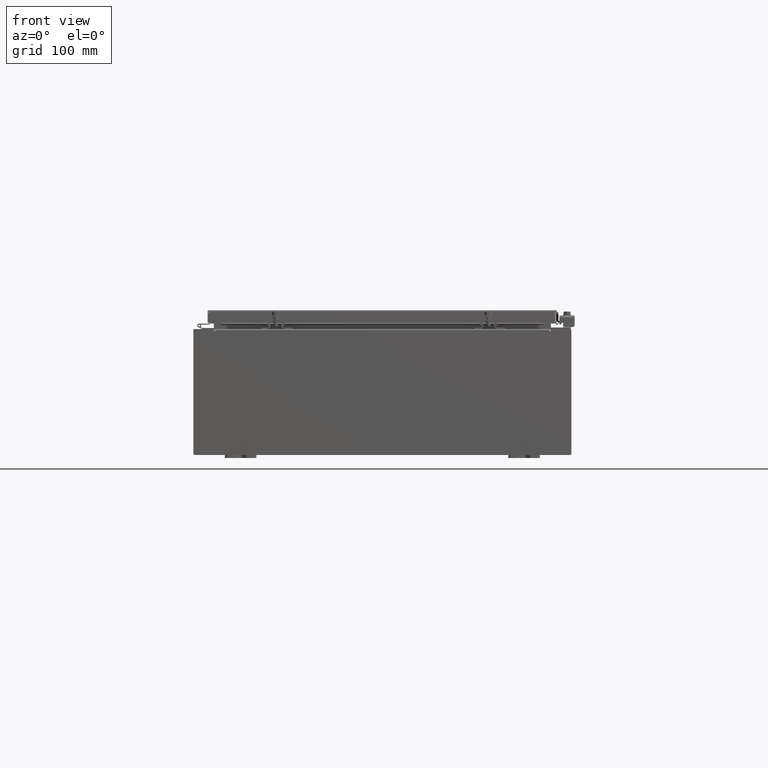
[diagram: clean part render]
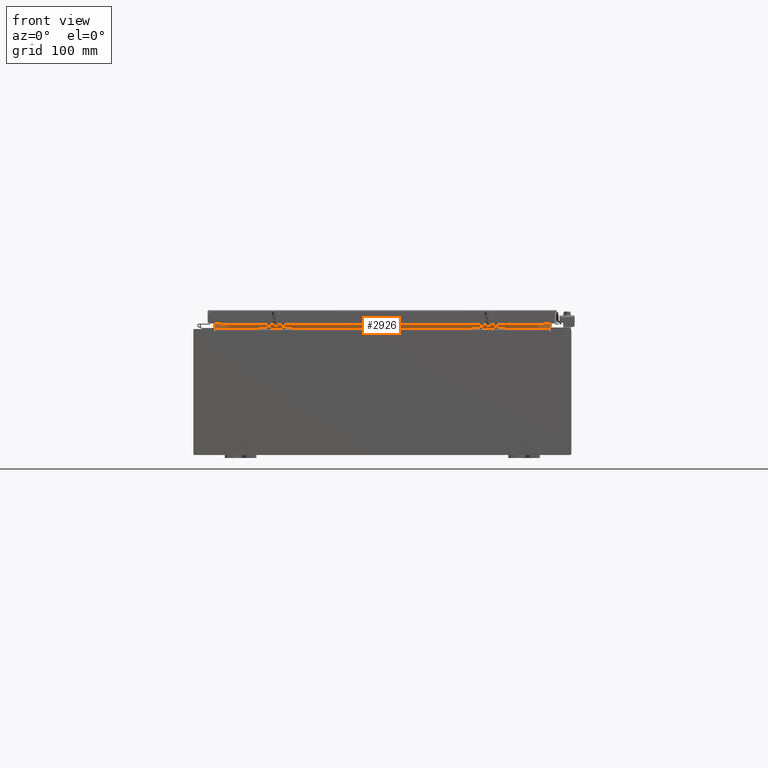
[diagram: same view with one face highlighted and labeled with its STEP entity id]
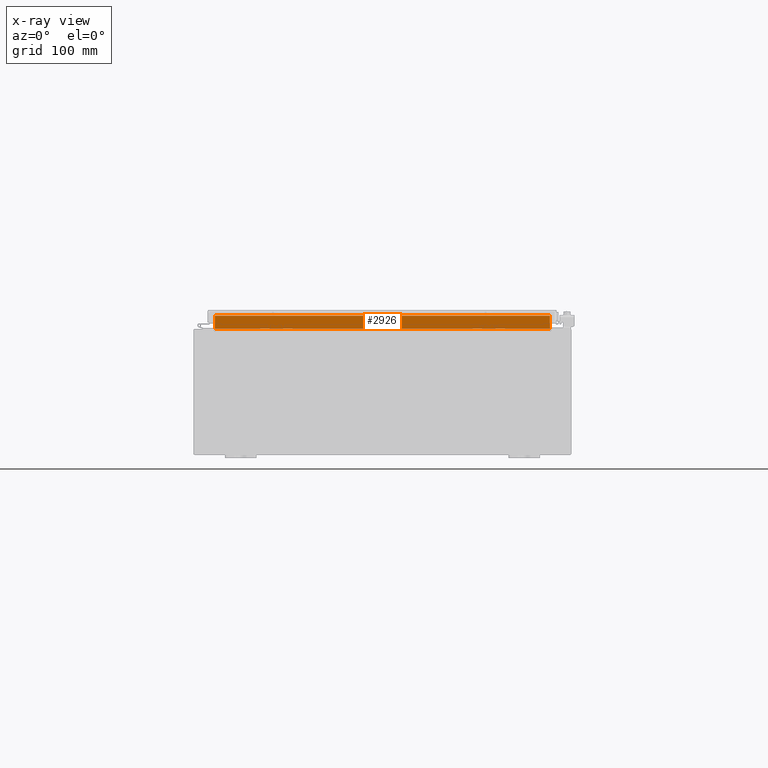
[diagram: x-ray of the same camera — body ghosted, the highlighted face saturated]
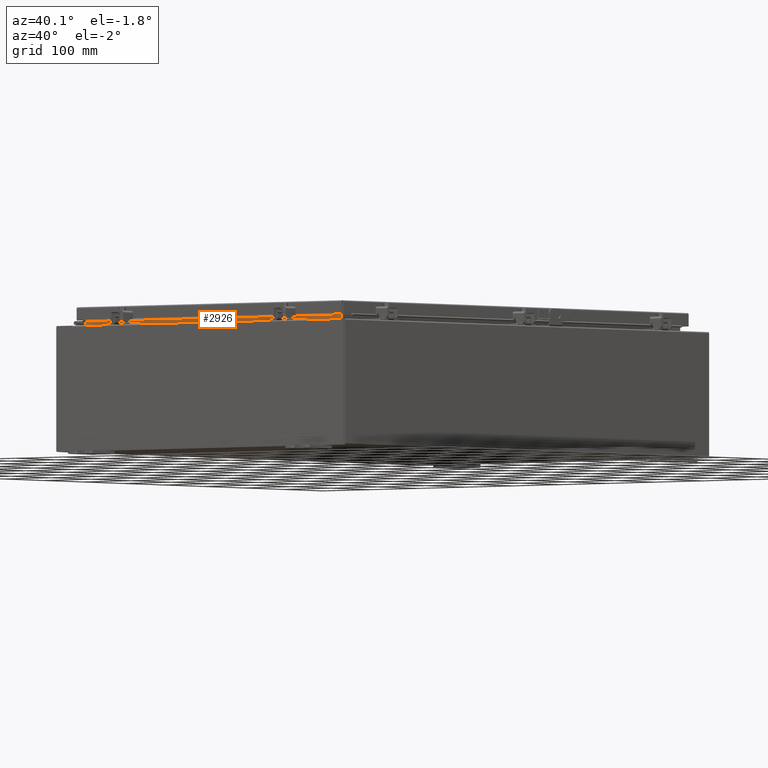
[diagram: same view with one face highlighted and labeled with its STEP entity id]
A machine part, front view. The second image highlights one B-rep face of the part: STEP entity #2926.
The next image is the same camera in x-ray: the body ghosted, the highlighted face saturated — about 0% of this face is hidden behind the body in this view.
A second angle (auxiliary view) of the same face is appended — the face is thin or edge-on in the first view.
In plain terms, the highlighted planar face has unit normal (0, -1, 0).
Its self-contained STEP definition (entity closure, byte-faithful):
#1317 = VECTOR ( 'NONE', #35622, 39.37007874015748100 ) ;
#2926 = ADVANCED_FACE ( 'NONE', ( #24677 ), #22278, .T. ) ;
#3594 = CARTESIAN_POINT ( 'NONE',  ( 10.63720000000000400, -1.300299999999999800, 4.013000000000003500 ) ) ;
#4083 = CARTESIAN_POINT ( 'NONE',  ( -10.63720000000000400, -1.300299999999999800, 4.013000000000003500 ) ) ;
#4972 = EDGE_CURVE ( 'NONE', #27650, #6920, #19198, .T. ) ;
#5467 = LINE ( 'NONE', #18381, #6508 ) ;
#6508 = VECTOR ( 'NONE', #24934, 39.37007874015748100 ) ;
#6920 = VERTEX_POINT ( 'NONE', #4083 ) ;
#12050 = DIRECTION ( 'NONE',  ( -0.0000000000000000000, -0.0000000000000000000, -1.000000000000000000 ) ) ;
#16301 = CARTESIAN_POINT ( 'NONE',  ( 10.63720000000000200, -1.300299999999999300, 4.837600000000003700 ) ) ;
#16992 = LINE ( 'NONE', #21174, #39768 ) ;
#17129 = VERTEX_POINT ( 'NONE', #31641 ) ;
#17382 = DIRECTION ( 'NONE',  ( 0.0000000000000000000, -0.0000000000000000000, 1.000000000000000000 ) ) ;
#18381 = CARTESIAN_POINT ( 'NONE',  ( 10.63720000000000200, -1.300299999999999800, 4.925300000000004500 ) ) ;
#19198 = LINE ( 'NONE', #24260, #34367 ) ;
#20102 = AXIS2_PLACEMENT_3D ( 'NONE', #40292, #28787, #17382 ) ;
#20784 = EDGE_LOOP ( 'NONE', ( #39818, #23868, #24741, #24663 ) ) ;
#21174 = CARTESIAN_POINT ( 'NONE',  ( -10.63720000000000200, -1.300299999999999800, 4.013000000000003500 ) ) ;
#22278 = PLANE ( 'NONE',  #20102 ) ;
#22530 = VERTEX_POINT ( 'NONE', #3594 ) ;
#23868 = ORIENTED_EDGE ( 'NONE', *, *, #38563, .F. ) ;
#24260 = CARTESIAN_POINT ( 'NONE',  ( -10.63720000000000200, -1.300299999999999800, 4.000000000000004400 ) ) ;
#24663 = ORIENTED_EDGE ( 'NONE', *, *, #25588, .F. ) ;
#24677 = FACE_OUTER_BOUND ( 'NONE', #20784, .T. ) ;
#24741 = ORIENTED_EDGE ( 'NONE', *, *, #38926, .F. ) ;
#24934 = DIRECTION ( 'NONE',  ( -0.0000000000000000000, -0.0000000000000000000, 1.000000000000000000 ) ) ;
#25588 = EDGE_CURVE ( 'NONE', #6920, #22530, #16992, .T. ) ;
#25880 = CARTESIAN_POINT ( 'NONE',  ( -10.63720000000000200, -1.300299999999999300, 4.837600000000003700 ) ) ;
#27650 = VERTEX_POINT ( 'NONE', #25880 ) ;
#28787 = DIRECTION ( 'NONE',  ( 0.0000000000000000000, 1.000000000000000000, 0.0000000000000000000 ) ) ;
#31641 = CARTESIAN_POINT ( 'NONE',  ( 10.63720000000000200, -1.300299999999999800, 4.837600000000003700 ) ) ;
#34367 = VECTOR ( 'NONE', #12050, 39.37007874015748100 ) ;
#35622 = DIRECTION ( 'NONE',  ( -1.000000000000000000, -0.0000000000000000000, -0.0000000000000000000 ) ) ;
#35863 = LINE ( 'NONE', #16301, #1317 ) ;
#38563 = EDGE_CURVE ( 'NONE', #17129, #27650, #35863, .T. ) ;
#38926 = EDGE_CURVE ( 'NONE', #22530, #17129, #5467, .T. ) ;
#39768 = VECTOR ( 'NONE', #40432, 39.37007874015748100 ) ;
#39818 = ORIENTED_EDGE ( 'NONE', *, *, #4972, .F. ) ;
#40292 = CARTESIAN_POINT ( 'NONE',  ( 0.0000000000000000000, -1.300299999999999800, 0.0000000000000000000 ) ) ;
#40432 = DIRECTION ( 'NONE',  ( 1.000000000000000000, 0.0000000000000000000, -2.568202152506545800E-017 ) ) ;